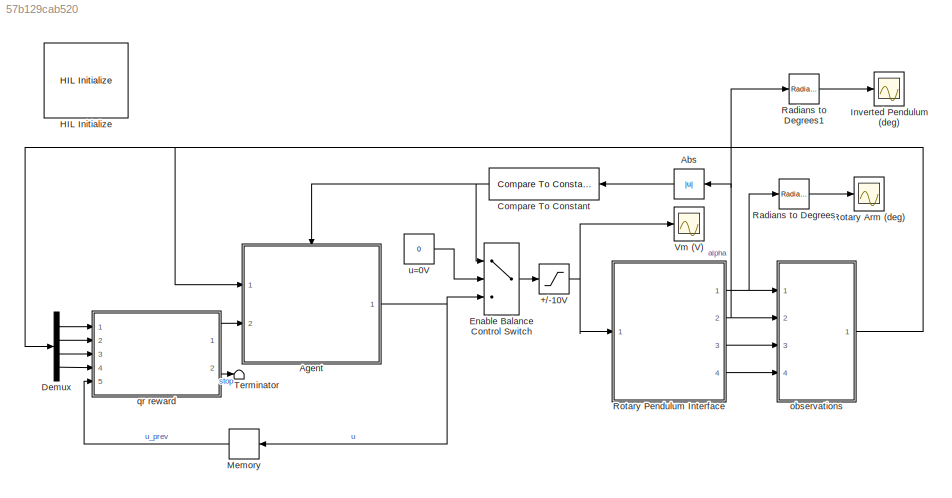
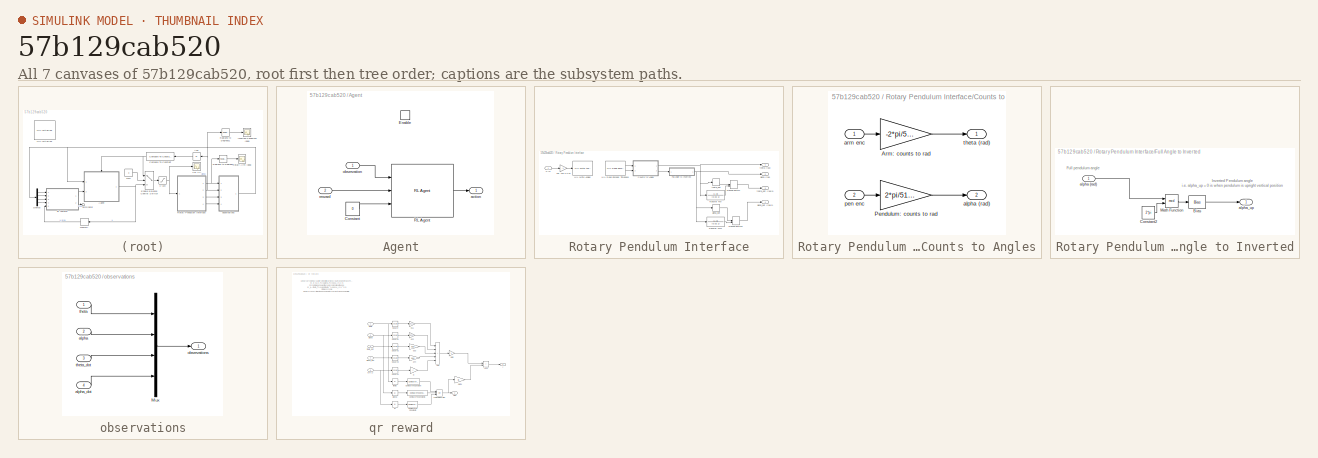
[diagram: thumbnail index - all 7 canvases of the model, root first then tree order]
MODEL slx_57b129cab520
KIND model
CONFIG AbsTol = auto
CONFIG EnableMultiTasking = on
CONFIG FixedStep = 0.002
CONFIG MaxStep = auto
CONFIG MinStep = auto
CONFIG RelTol = 1e-3
CONFIG SampleTimeConstraint = Unconstrained
CONFIG SolverName = ode4
CONFIG StartTime = 0.0
CONFIG StopTime = inf
BLOCK [Saturate] +//-10V
  LowerLimit = -10
  UpperLimit = 10
BLOCK [Abs] Abs
  SaturateOnIntegerOverflow = off
BLOCK [SubSystem] Agent
  Ports = [2, 1, 1]
  RequestExecContextInheritance = off
BLOCK [Constant] Agent/Constant
  SampleTime = Ts
  Value = 0
BLOCK [EnablePort] Agent/Enable
  Ports = []
BLOCK [Reference] Agent/RL Agent  REF=rllib/RL Agent
  Ports = [3, 1]
  SourceBlock = rllib/RL Agent
  SourceProductBaseCode = RL
  SourceType = RL Agent
BLOCK [Outport] Agent/action
  InitialOutput = [0]
BLOCK [Inport] Agent/observation
BLOCK [Inport] Agent/reward
  Port = 2
BLOCK [Reference] Compare To Constant  REF=simulink/Logic and Bit
Operations/Compare
To Constant
  Ports = [1, 1]
  SourceBlock = simulink/Logic and Bit\nOperations/Compare\nTo Constant
  SourceProductBaseCode = SL
  SourceType = Compare To Constant
BLOCK [Demux] Demux
  Ports = [1, 4]
BLOCK [MultiPortSwitch] Enable Balance Control Switch
  DataPortOrder = Zero-based contiguous
  InputSameDT = off
  Inputs = 2
  Ports = [3, 1]
  SaturateOnIntegerOverflow = off
  zeroidx = on
BLOCK [Reference] HIL Initialize  REF=quarc_library/Data Acquisition/Generic/Configuration/HIL Initialize
  AttributesFormatString = %<object_name> (%<board_type>-%<board_number>)
  Ports = []
  SourceBlock = quarc_library/Data Acquisition/Generic/Configuration/HIL Initialize
  SourceProductName = QUARC Targets
  SourceType = HIL Initialize
  UserDataPersistent = on
BLOCK [Scope] Inverted Pendulum (deg)
  Floating = off
  NumInputPorts = 1
  Ports = [1]
  ScopeSpecificationString = Simulink.scopes.TimeScopeBlockCfg('CurrentConfiguration', extmgr.ConfigurationSet(extmgr.Configuration('Core','General UI',true),extmgr.Configuration('Core','Source UI',true),extmgr.Configuration('Sources','WiredSimulink',true,'DataLoggingVariableName','ScopeData1'),extmgr.Configuration('Visuals','Time Domain',true,'SerializedDisplays',{struct('MinYLimReal','-20','MaxYLimReal','20','YLabelReal',''...<+1433ch>
BLOCK [Memory] Memory
BLOCK [Reference] Radians to Degrees  REF=simulink_extras/Transformations/Radians
to Degrees
  Ports = [1, 1]
  SourceBlock = simulink_extras/Transformations/Radians\nto Degrees
  SourceProductBaseCode = SL
  SourceType = RadiansToDegrees
BLOCK [Reference] Radians to Degrees1  REF=simulink_extras/Transformations/Radians
to Degrees
  Ports = [1, 1]
  SourceBlock = simulink_extras/Transformations/Radians\nto Degrees
  SourceProductBaseCode = SL
  SourceType = RadiansToDegrees
BLOCK [Scope] Rotary Arm (deg)
  Floating = off
  NumInputPorts = 1
  Ports = [1]
  ScopeSpecificationString = Simulink.scopes.TimeScopeBlockCfg('CurrentConfiguration', extmgr.ConfigurationSet(extmgr.Configuration('Core','General UI',true),extmgr.Configuration('Core','Source UI',true),extmgr.Configuration('Sources','WiredSimulink',true,'DataLoggingVariableName','ScopeData2'),extmgr.Configuration('Visuals','Time Domain',true,'SerializedDisplays',{struct('MinYLimReal','-30','MaxYLimReal','30','YLabelReal',''...<+1431ch>
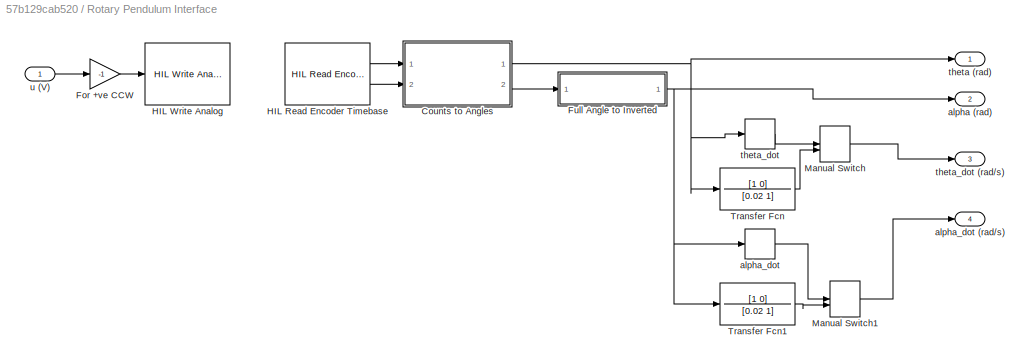
BLOCK [SubSystem] Rotary Pendulum Interface
  Ports = [1, 4]
  RequestExecContextInheritance = off
BLOCK [SubSystem] Rotary Pendulum Interface/Counts to Angles
  Ports = [2, 2]
  RequestExecContextInheritance = off
BLOCK [Gain] Rotary Pendulum Interface/Counts to Angles/Arm: counts to rad
  Gain = -2*pi/512/4
BLOCK [Gain] Rotary Pendulum Interface/Counts to Angles/Pendulum: counts to rad
  Gain = 2*pi/512/4
BLOCK [Outport] Rotary Pendulum Interface/Counts to Angles/alpha (rad)
  Port = 2
  VectorParamsAs1DForOutWhenUnconnected = off
BLOCK [Inport] Rotary Pendulum Interface/Counts to Angles/arm enc
BLOCK [Inport] Rotary Pendulum Interface/Counts to Angles/pen enc
  Port = 2
BLOCK [Outport] Rotary Pendulum Interface/Counts to Angles/theta (rad)
  VectorParamsAs1DForOutWhenUnconnected = off
BLOCK [Gain] Rotary Pendulum Interface/For +ve CCW
  Gain = -1
BLOCK [SubSystem] Rotary Pendulum Interface/Full Angle to Inverted
  Ports = [1, 1]
  RequestExecContextInheritance = off
BLOCK [Bias] Rotary Pendulum Interface/Full Angle to Inverted/Bias
  Bias = -pi
  SaturateOnIntegerOverflow = off
BLOCK [Constant] Rotary Pendulum Interface/Full Angle to Inverted/Constant2
  Value = 2*pi
BLOCK [Math] Rotary Pendulum Interface/Full Angle to Inverted/Math Function
  Operator = mod
  Ports = [2, 1]
  SignedPower = on
BLOCK [Inport] Rotary Pendulum Interface/Full Angle to Inverted/alpha (rad)
BLOCK [Outport] Rotary Pendulum Interface/Full Angle to Inverted/alpha_up
  VectorParamsAs1DForOutWhenUnconnected = off
BLOCK [Reference] Rotary Pendulum Interface/HIL Read Encoder Timebase  REF=quarc_library/Data Acquisition/Generic/Timebases/HIL Read Encoder
Timebase
  AttributesFormatString = (%<object_name>)
  Ports = [0, 2]
  SourceBlock = quarc_library/Data Acquisition/Generic/Timebases/HIL Read Encoder\nTimebase
  SourceProductName = QUARC Targets
  SourceType = HIL Read Encoder Timebase
  UserDataPersistent = on
BLOCK [Reference] Rotary Pendulum Interface/HIL Write Analog  REF=quarc_library/Data Acquisition/Generic/Immediate I//O/HIL Write Analog
  AttributesFormatString = (%<object_name>)
  Ports = [1]
  SourceBlock = quarc_library/Data Acquisition/Generic/Immediate I//O/HIL Write Analog
  SourceProductName = QUARC Targets
  SourceType = HIL Write Analog
  UserDataPersistent = on
BLOCK [ManualSwitch] Rotary Pendulum Interface/Manual Switch
BLOCK [ManualSwitch] Rotary Pendulum Interface/Manual Switch1
BLOCK [TransferFcn] Rotary Pendulum Interface/Transfer Fcn
  Denominator = [0.02 1]
  Numerator = [1 0]
BLOCK [TransferFcn] Rotary Pendulum Interface/Transfer Fcn1
  Denominator = [0.02 1]
  Numerator = [1 0]
BLOCK [Outport] Rotary Pendulum Interface/alpha (rad)
  Port = 2
  VectorParamsAs1DForOutWhenUnconnected = off
BLOCK [Derivative] Rotary Pendulum Interface/alpha_dot
BLOCK [Outport] Rotary Pendulum Interface/alpha_dot (rad//s)
  Port = 4
  VectorParamsAs1DForOutWhenUnconnected = off
BLOCK [Outport] Rotary Pendulum Interface/theta (rad)
  VectorParamsAs1DForOutWhenUnconnected = off
BLOCK [Derivative] Rotary Pendulum Interface/theta_dot
BLOCK [Outport] Rotary Pendulum Interface/theta_dot (rad//s)
  Port = 3
  VectorParamsAs1DForOutWhenUnconnected = off
BLOCK [Inport] Rotary Pendulum Interface/u (V)
BLOCK [Terminator] Terminator
BLOCK [Scope] Vm (V)
  Floating = off
  NumInputPorts = 1
  Ports = [1]
  ScopeSpecificationString = Simulink.scopes.TimeScopeBlockCfg('CurrentConfiguration', extmgr.ConfigurationSet(extmgr.Configuration('Core','General UI',true),extmgr.Configuration('Core','Source UI',true),extmgr.Configuration('Sources','WiredSimulink',true),extmgr.Configuration('Visuals','Time Domain',true,'SerializedDisplays',{struct('MinYLimReal','-8','MaxYLimReal','8','YLabelReal','','MinYLimMag','0.00000','MaxYLimMag','6.1...<+1403ch>
BLOCK [SubSystem] observations
  Ports = [4, 1]
  RequestExecContextInheritance = off
  VariantControl = sincos
BLOCK [Mux] observations/Mux
  DisplayOption = bar
  Ports = [4, 1]
BLOCK [Inport] observations/alpha
  Port = 2
BLOCK [Inport] observations/alpha_dot
  Port = 4
BLOCK [Outport] observations/observations
  VectorParamsAs1DForOutWhenUnconnected = off
BLOCK [Inport] observations/theta
BLOCK [Inport] observations/theta_dot
  Port = 3
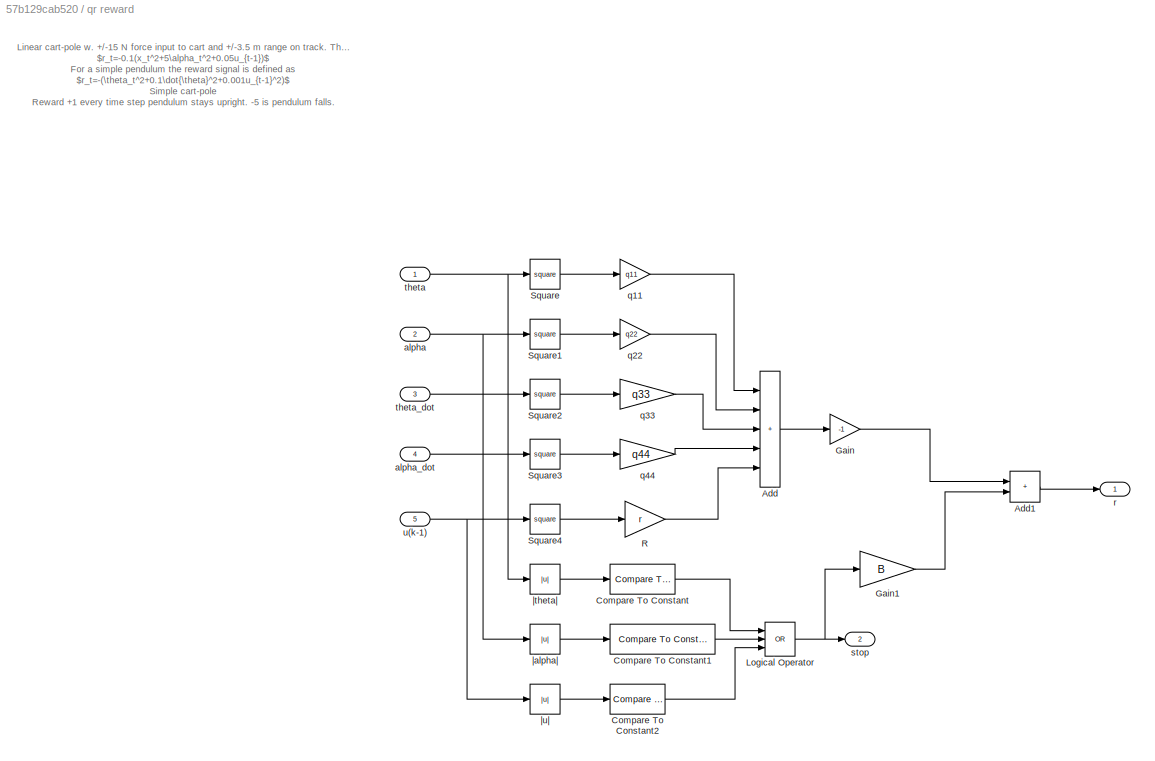
BLOCK [SubSystem] qr reward
  Ports = [5, 2]
  RequestExecContextInheritance = off
BLOCK [Sum] qr reward/Add
  IconShape = rectangular
  Inputs = +++++
  Ports = [5, 1]
BLOCK [Sum] qr reward/Add1
  IconShape = rectangular
  Ports = [2, 1]
BLOCK [Reference] qr reward/Compare To Constant  REF=simulink/Logic and Bit
Operations/Compare
To Constant
  Ports = [1, 1]
  SourceBlock = simulink/Logic and Bit\nOperations/Compare\nTo Constant
  SourceProductBaseCode = SL
  SourceType = Compare To Constant
BLOCK [Reference] qr reward/Compare To Constant1  REF=simulink/Logic and Bit
Operations/Compare
To Constant
  Ports = [1, 1]
  SourceBlock = simulink/Logic and Bit\nOperations/Compare\nTo Constant
  SourceProductBaseCode = SL
  SourceType = Compare To Constant
BLOCK [Reference] qr reward/Compare To Constant2  REF=simulink/Logic and Bit
Operations/Compare
To Constant
  Ports = [1, 1]
  SourceBlock = simulink/Logic and Bit\nOperations/Compare\nTo Constant
  SourceProductBaseCode = SL
  SourceType = Compare To Constant
BLOCK [Gain] qr reward/Gain
  Gain = -1
BLOCK [Gain] qr reward/Gain1
  Gain = B
BLOCK [Logic] qr reward/Logical Operator
  AllPortsSameDT = off
  Inputs = 3
  Operator = OR
  OutDataTypeStr = boolean
  Ports = [3, 1]
BLOCK [Gain] qr reward/R
  Gain = r
BLOCK [Math] qr reward/Square
  Operator = square
  Ports = [1, 1]
BLOCK [Math] qr reward/Square1
  Operator = square
  Ports = [1, 1]
BLOCK [Math] qr reward/Square2
  Operator = square
  Ports = [1, 1]
BLOCK [Math] qr reward/Square3
  Operator = square
  Ports = [1, 1]
BLOCK [Math] qr reward/Square4
  Operator = square
  Ports = [1, 1]
BLOCK [Inport] qr reward/alpha
  Port = 2
BLOCK [Inport] qr reward/alpha_dot
  Port = 4
BLOCK [Gain] qr reward/q11
  Gain = q11
BLOCK [Gain] qr reward/q22
  Gain = q22
BLOCK [Gain] qr reward/q33
  Gain = q33
BLOCK [Gain] qr reward/q44
  Gain = q44
BLOCK [Outport] qr reward/r
  VectorParamsAs1DForOutWhenUnconnected = off
BLOCK [Outport] qr reward/stop
  Port = 2
  VectorParamsAs1DForOutWhenUnconnected = off
BLOCK [Inport] qr reward/theta
BLOCK [Inport] qr reward/theta_dot
  Port = 3
BLOCK [Inport] qr reward/u(k-1)
  Port = 5
BLOCK [Abs] qr reward/|alpha|
  SaturateOnIntegerOverflow = off
BLOCK [Abs] qr reward/|theta|
  SaturateOnIntegerOverflow = off
BLOCK [Abs] qr reward/|u|
  SaturateOnIntegerOverflow = off
BLOCK [Constant] u=0V
  Value = 0
ANNOTATION Rotary Pendulum Interface/Full Angle to Inverted: Full pendulum angle
ANNOTATION Rotary Pendulum Interface/Full Angle to Inverted: Inverted Pendulum angle i.e. alpha_up = 0 is when pendulum is upright vertical position
ANNOTATION qr reward: Linear cart-pole w. +/-15 N force input to cart and +/-3.5 m range on track. This is the "quadratic regular control" reward signal: $r_t=-0.1(x_t^2+5\alpha_t^2+0.05u_{t-1})$ For a simple pendulum the reward signal is defined as $r_t=-(\theta_t^2+0.1\dot{\theta}^2+0.001u_{t-1}^2)$ Simple cart-pole Reward +1 every time step pendulum stays upright. -5 is pendulum falls. Episode stops if pendulum is m...<+65ch>
NET +//-10V:1 -> Rotary Pendulum Interface:1, Vm (V):1
LINE Abs:1 -> Compare To Constant:1
LINE Agent/Constant:1 -> Agent/RL Agent:3
LINE Agent/RL Agent:1 -> Agent/action:1
LINE Agent/observation:1 -> Agent/RL Agent:1
LINE Agent/reward:1 -> Agent/RL Agent:2
NET Agent:1 -> Enable Balance Control Switch:3, Memory:1
NET Compare To Constant:1 -> Agent:enable, Enable Balance Control Switch:1
LINE Demux:1 -> qr reward:1
LINE Demux:2 -> qr reward:2
LINE Demux:3 -> qr reward:3
LINE Demux:4 -> qr reward:4
LINE Enable Balance Control Switch:1 -> +//-10V:1
LINE Memory:1 -> qr reward:5
LINE Radians to Degrees1:1 -> Inverted Pendulum (deg):1
LINE Radians to Degrees:1 -> Rotary Arm (deg):1
LINE Rotary Pendulum Interface/Counts to Angles/Arm: counts to rad:1 -> Rotary Pendulum Interface/Counts to Angles/theta (rad):1
LINE Rotary Pendulum Interface/Counts to Angles/Pendulum: counts to rad:1 -> Rotary Pendulum Interface/Counts to Angles/alpha (rad):1
LINE Rotary Pendulum Interface/Counts to Angles/arm enc:1 -> Rotary Pendulum Interface/Counts to Angles/Arm: counts to rad:1
LINE Rotary Pendulum Interface/Counts to Angles/pen enc:1 -> Rotary Pendulum Interface/Counts to Angles/Pendulum: counts to rad:1
NET Rotary Pendulum Interface/Counts to Angles:1 -> Rotary Pendulum Interface/Transfer Fcn:1, Rotary Pendulum Interface/theta (rad):1, Rotary Pendulum Interface/theta_dot:1
LINE Rotary Pendulum Interface/Counts to Angles:2 -> Rotary Pendulum Interface/Full Angle to Inverted:1
LINE Rotary Pendulum Interface/For +ve CCW:1 -> Rotary Pendulum Interface/HIL Write Analog:1
LINE Rotary Pendulum Interface/Full Angle to Inverted/Bias:1 -> Rotary Pendulum Interface/Full Angle to Inverted/alpha_up:1
LINE Rotary Pendulum Interface/Full Angle to Inverted/Constant2:1 -> Rotary Pendulum Interface/Full Angle to Inverted/Math Function:2
LINE Rotary Pendulum Interface/Full Angle to Inverted/Math Function:1 -> Rotary Pendulum Interface/Full Angle to Inverted/Bias:1
LINE Rotary Pendulum Interface/Full Angle to Inverted/alpha (rad):1 -> Rotary Pendulum Interface/Full Angle to Inverted/Math Function:1
NET Rotary Pendulum Interface/Full Angle to Inverted:1 -> Rotary Pendulum Interface/Transfer Fcn1:1, Rotary Pendulum Interface/alpha (rad):1, Rotary Pendulum Interface/alpha_dot:1
LINE Rotary Pendulum Interface/HIL Read Encoder Timebase:1 -> Rotary Pendulum Interface/Counts to Angles:1
LINE Rotary Pendulum Interface/HIL Read Encoder Timebase:2 -> Rotary Pendulum Interface/Counts to Angles:2
LINE Rotary Pendulum Interface/Manual Switch1:1 -> Rotary Pendulum Interface/alpha_dot (rad//s):1
LINE Rotary Pendulum Interface/Manual Switch:1 -> Rotary Pendulum Interface/theta_dot (rad//s):1
LINE Rotary Pendulum Interface/Transfer Fcn1:1 -> Rotary Pendulum Interface/Manual Switch1:2
LINE Rotary Pendulum Interface/Transfer Fcn:1 -> Rotary Pendulum Interface/Manual Switch:2
LINE Rotary Pendulum Interface/alpha_dot:1 -> Rotary Pendulum Interface/Manual Switch1:1
LINE Rotary Pendulum Interface/theta_dot:1 -> Rotary Pendulum Interface/Manual Switch:1
LINE Rotary Pendulum Interface/u (V):1 -> Rotary Pendulum Interface/For +ve CCW:1
NET Rotary Pendulum Interface:1 -> Radians to Degrees:1, observations:1
NET Rotary Pendulum Interface:2 -> Abs:1, Radians to Degrees1:1, observations:2
LINE Rotary Pendulum Interface:3 -> observations:3
LINE Rotary Pendulum Interface:4 -> observations:4
LINE observations/Mux:1 -> observations/observations:1
LINE observations/alpha:1 -> observations/Mux:2
LINE observations/alpha_dot:1 -> observations/Mux:4
LINE observations/theta:1 -> observations/Mux:1
LINE observations/theta_dot:1 -> observations/Mux:3
NET observations:1 -> Agent:1, Demux:1
LINE qr reward/Add1:1 -> qr reward/r:1
LINE qr reward/Add:1 -> qr reward/Gain:1
LINE qr reward/Compare To Constant1:1 -> qr reward/Logical Operator:2
LINE qr reward/Compare To Constant2:1 -> qr reward/Logical Operator:3
LINE qr reward/Compare To Constant:1 -> qr reward/Logical Operator:1
LINE qr reward/Gain1:1 -> qr reward/Add1:2
LINE qr reward/Gain:1 -> qr reward/Add1:1
NET qr reward/Logical Operator:1 -> qr reward/Gain1:1, qr reward/stop:1
LINE qr reward/R:1 -> qr reward/Add:5
LINE qr reward/Square1:1 -> qr reward/q22:1
LINE qr reward/Square2:1 -> qr reward/q33:1
LINE qr reward/Square3:1 -> qr reward/q44:1
LINE qr reward/Square4:1 -> qr reward/R:1
LINE qr reward/Square:1 -> qr reward/q11:1
NET qr reward/alpha:1 -> qr reward/Square1:1, qr reward/|alpha|:1
LINE qr reward/alpha_dot:1 -> qr reward/Square3:1
LINE qr reward/q11:1 -> qr reward/Add:1
LINE qr reward/q22:1 -> qr reward/Add:2
LINE qr reward/q33:1 -> qr reward/Add:3
LINE qr reward/q44:1 -> qr reward/Add:4
NET qr reward/theta:1 -> qr reward/Square:1, qr reward/|theta|:1
LINE qr reward/theta_dot:1 -> qr reward/Square2:1
NET qr reward/u(k-1):1 -> qr reward/Square4:1, qr reward/|u|:1
LINE qr reward/|alpha|:1 -> qr reward/Compare To Constant1:1
LINE qr reward/|theta|:1 -> qr reward/Compare To Constant:1
LINE qr reward/|u|:1 -> qr reward/Compare To Constant2:1
LINE qr reward:1 -> Agent:2
LINE qr reward:2 -> Terminator:1
LINE u=0V:1 -> Enable Balance Control Switch:2
note: NET lines group one-source signal fan-out (src -> all destinations, sorted); 1:1 wires keep LINE
